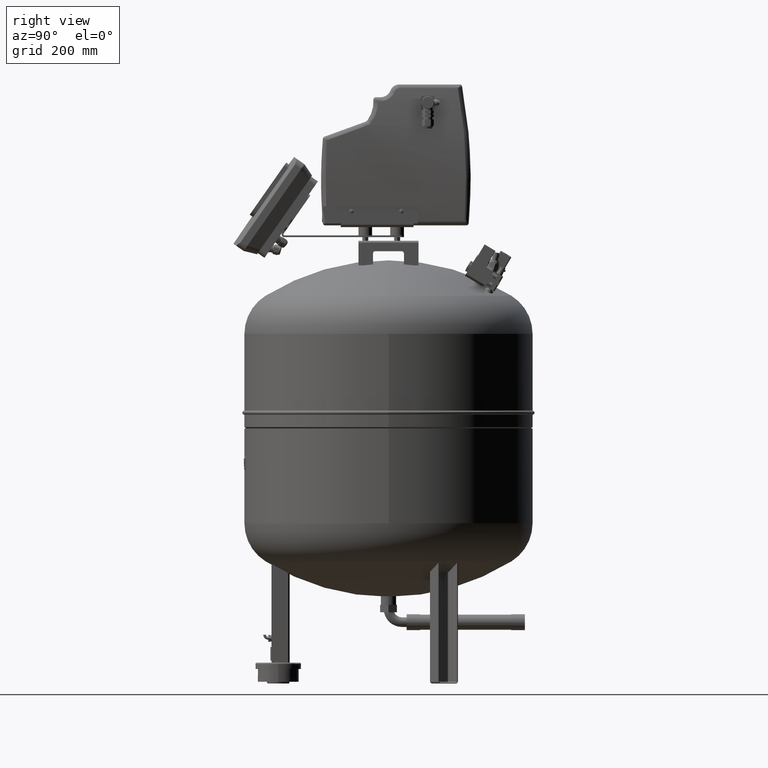
[diagram: clean part render]
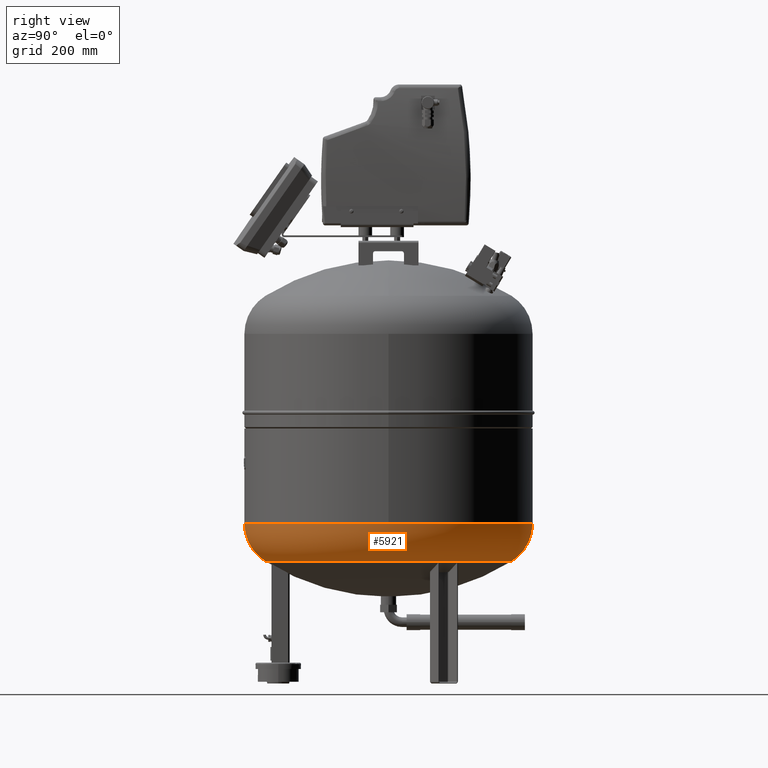
[diagram: same view with one face highlighted and labeled with its STEP entity id]
A machine part, right view. The second image highlights one B-rep face of the part: STEP entity #5921.
In plain terms, the highlighted toroidal blend (fillet) surface has major radius 218 mm and minor (blend) radius 99 mm.
Its self-contained STEP definition (entity closure, byte-faithful):
#5771=CARTESIAN_POINT('',(317.0,9.105293E-015,352.75944937262864));
#5772=VERTEX_POINT('',#5771);
#5779=CARTESIAN_POINT('',(-3.882002E-014,317.0,352.75944937262869));
#5780=VERTEX_POINT('',#5779);
#5781=CARTESIAN_POINT('',(-1.556097E-014,-2.971473E-014,352.75944937262864));
#5782=DIRECTION('',(0.0,0.0,1.0));
#5783=DIRECTION('',(-1.0,0.0,0.0));
#5784=AXIS2_PLACEMENT_3D('',#5781,#5782,#5783);
#5785=CIRCLE('',#5784,317.00000000000006);
#5786=EDGE_CURVE('',#5772,#5780,#5785,.T.);
#5803=CARTESIAN_POINT('',(-3.021869E-030,-317.00000000000011,352.75944937262858));
#5804=VERTEX_POINT('',#5803);
#5805=CARTESIAN_POINT('',(8.065826E-015,-270.63902439024383,268.91356031870237));
#5806=VERTEX_POINT('',#5805);
#5807=CARTESIAN_POINT('',(0.0,-218.00000000000003,352.75944937262858));
#5808=DIRECTION('',(1.0,0.0,0.0));
#5809=DIRECTION('',(0.0,-1.0,0.0));
#5810=AXIS2_PLACEMENT_3D('',#5807,#5808,#5809);
#5811=CIRCLE('',#5810,99.0);
#5812=EDGE_CURVE('',#5804,#5806,#5811,.T.);
#5822=CARTESIAN_POINT('',(-2.507680E-014,270.63902439024383,268.91356031870248));
#5823=VERTEX_POINT('',#5822);
#5824=CARTESIAN_POINT('',(-2.669642E-014,217.99999999999997,352.75944937262869));
#5825=DIRECTION('',(-1.0,0.0,0.0));
#5826=DIRECTION('',(0.0,1.0,0.0));
#5827=AXIS2_PLACEMENT_3D('',#5824,#5825,#5826);
#5828=CIRCLE('',#5827,99.0);
#5829=EDGE_CURVE('',#5780,#5823,#5828,.T.);
#5855=CARTESIAN_POINT('',(270.63902439024383,-9.350178E-014,268.91356031870237));
#5856=VERTEX_POINT('',#5855);
#5866=CARTESIAN_POINT('',(-7.495146E-015,-1.431249E-014,268.91356031870242));
#5867=DIRECTION('',(0.0,0.0,1.0));
#5868=DIRECTION('',(-1.0,0.0,0.0));
#5869=AXIS2_PLACEMENT_3D('',#5866,#5867,#5868);
#5870=CIRCLE('',#5869,270.63902439024383);
#5871=EDGE_CURVE('',#5806,#5856,#5870,.T.);
#5892=CARTESIAN_POINT('',(-7.495146E-015,-1.431249E-014,268.91356031870242));
#5893=DIRECTION('',(0.0,0.0,1.0));
#5894=DIRECTION('',(-1.0,0.0,0.0));
#5895=AXIS2_PLACEMENT_3D('',#5892,#5893,#5894);
#5896=CIRCLE('',#5895,270.63902439024383);
#5897=EDGE_CURVE('',#5856,#5823,#5896,.T.);
#5902=CARTESIAN_POINT('',(0.0,-2.971473E-014,352.75944937262864));
#5903=DIRECTION('',(-9.619823E-017,-1.836970E-016,1.0));
#5904=DIRECTION('',(0.0,-1.0,0.0));
#5905=AXIS2_PLACEMENT_3D('',#5902,#5903,#5904);
#5906=TOROIDAL_SURFACE('',#5905,218.0,99.0);
#5907=ORIENTED_EDGE('',*,*,#5812,.T.);
#5908=ORIENTED_EDGE('',*,*,#5871,.T.);
#5909=ORIENTED_EDGE('',*,*,#5897,.T.);
#5910=ORIENTED_EDGE('',*,*,#5829,.F.);
#5911=ORIENTED_EDGE('',*,*,#5786,.F.);
#5912=CARTESIAN_POINT('',(-1.556097E-014,-2.971473E-014,352.75944937262864));
#5913=DIRECTION('',(0.0,0.0,1.0));
#5914=DIRECTION('',(-1.0,0.0,0.0));
#5915=AXIS2_PLACEMENT_3D('',#5912,#5913,#5914);
#5916=CIRCLE('',#5915,317.00000000000006);
#5917=EDGE_CURVE('',#5804,#5772,#5916,.T.);
#5918=ORIENTED_EDGE('',*,*,#5917,.F.);
#5919=EDGE_LOOP('',(#5907,#5908,#5909,#5910,#5911,#5918));
#5920=FACE_OUTER_BOUND('',#5919,.T.);
#5921=ADVANCED_FACE('',(#5920),#5906,.T.);